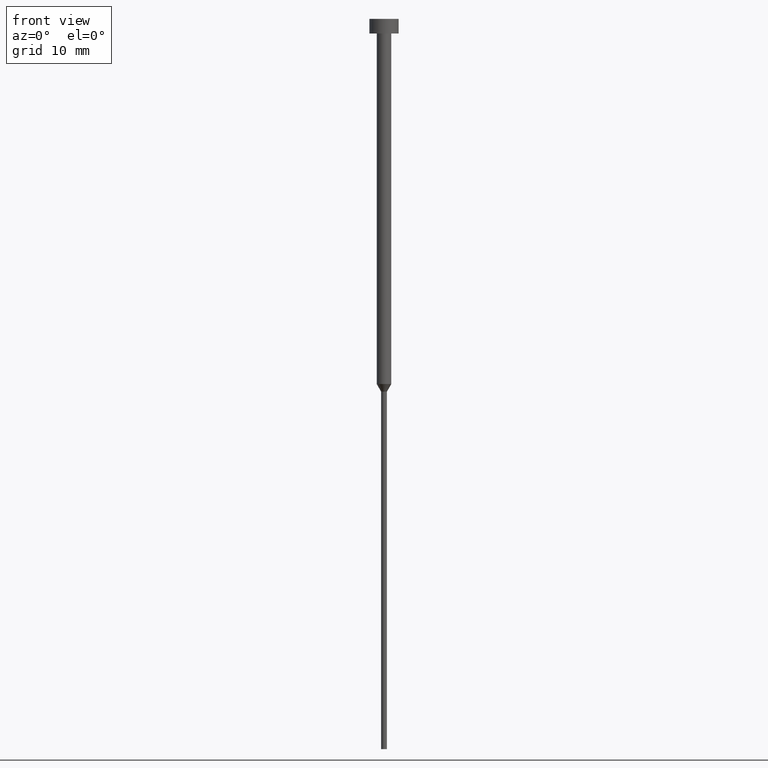
[diagram: clean part render]
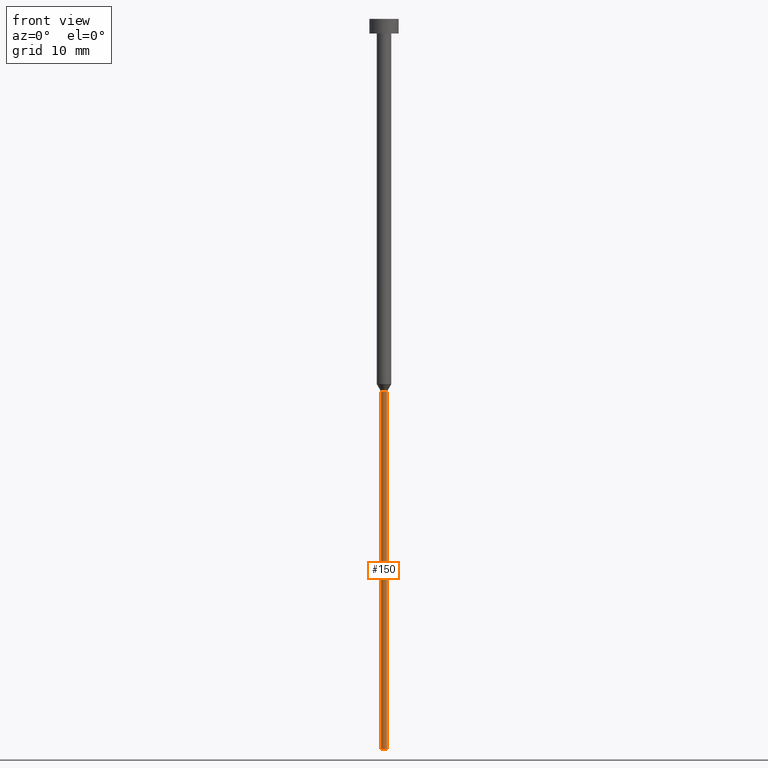
[diagram: same view with one face highlighted and labeled with its STEP entity id]
A machine part, front view. The second image highlights one B-rep face of the part: STEP entity #150.
In plain terms, the highlighted cylindrical surface (edge-blend (fillet) strip) has radius 0.4 mm, axis along (-0, -0, 1).
Its self-contained STEP definition (entity closure, byte-faithful):
#3 = CARTESIAN_POINT ( 'NONE',  ( 0.000000000000000000, 0.000000000000000000, -100.0000000000000000 ) ) ;
#17 = DIRECTION ( 'NONE',  ( 1.000000000000000000, 0.000000000000000000, 0.000000000000000000 ) ) ;
#32 = CARTESIAN_POINT ( 'NONE',  ( -0.3999999999999999667, 4.898587196589412459E-17, 0.000000000000000000 ) ) ;
#58 = VERTEX_POINT ( 'NONE', #254 ) ;
#63 = VERTEX_POINT ( 'NONE', #225 ) ;
#67 = CARTESIAN_POINT ( 'NONE',  ( 0.4000000000000000222, 0.000000000000000000, -100.0000000000000000 ) ) ;
#76 = CIRCLE ( 'NONE', #328, 0.4000000000000000222 ) ;
#85 = VECTOR ( 'NONE', #271, 1000.000000000000000 ) ;
#92 = ORIENTED_EDGE ( 'NONE', *, *, #294, .F. ) ;
#106 = VERTEX_POINT ( 'NONE', #67 ) ;
#113 = AXIS2_PLACEMENT_3D ( 'NONE', #230, #182, #263 ) ;
#117 = EDGE_LOOP ( 'NONE', ( #92, #330, #221, #143 ) ) ;
#122 = DIRECTION ( 'NONE',  ( -0.000000000000000000, -0.000000000000000000, 1.000000000000000000 ) ) ;
#143 = ORIENTED_EDGE ( 'NONE', *, *, #165, .F. ) ;
#150 = ADVANCED_FACE ( 'NONE', ( #189 ), #349, .T. ) ;
#164 = LINE ( 'NONE', #32, #323 ) ;
#165 = EDGE_CURVE ( 'NONE', #63, #58, #235, .T. ) ;
#182 = DIRECTION ( 'NONE',  ( -0.000000000000000000, -0.000000000000000000, 1.000000000000000000 ) ) ;
#189 = FACE_OUTER_BOUND ( 'NONE', #117, .T. ) ;
#204 = VERTEX_POINT ( 'NONE', #290 ) ;
#209 = DIRECTION ( 'NONE',  ( -0.000000000000000000, -0.000000000000000000, 1.000000000000000000 ) ) ;
#215 = DIRECTION ( 'NONE',  ( 1.000000000000000000, 0.000000000000000000, 0.000000000000000000 ) ) ;
#221 = ORIENTED_EDGE ( 'NONE', *, *, #234, .T. ) ;
#225 = CARTESIAN_POINT ( 'NONE',  ( -0.3999999999999999667, 4.898587196589412459E-17, -51.03923048454132783 ) ) ;
#230 = CARTESIAN_POINT ( 'NONE',  ( 0.000000000000000000, 0.000000000000000000, -51.03923048454132783 ) ) ;
#232 = CARTESIAN_POINT ( 'NONE',  ( 0.3999999999999999667, 0.000000000000000000, 0.000000000000000000 ) ) ;
#234 = EDGE_CURVE ( 'NONE', #106, #58, #317, .T. ) ;
#235 = CIRCLE ( 'NONE', #113, 0.3999999999999999667 ) ;
#254 = CARTESIAN_POINT ( 'NONE',  ( 0.3999999999999999667, 0.000000000000000000, -51.03923048454132783 ) ) ;
#263 = DIRECTION ( 'NONE',  ( 1.000000000000000000, 0.000000000000000000, 0.000000000000000000 ) ) ;
#271 = DIRECTION ( 'NONE',  ( -0.000000000000000000, -0.000000000000000000, 1.000000000000000000 ) ) ;
#280 = EDGE_CURVE ( 'NONE', #204, #106, #76, .T. ) ;
#290 = CARTESIAN_POINT ( 'NONE',  ( -0.4000000000000000777, 4.898587196589413692E-17, -100.0000000000000000 ) ) ;
#292 = CARTESIAN_POINT ( 'NONE',  ( 0.000000000000000000, 0.000000000000000000, 0.000000000000000000 ) ) ;
#294 = EDGE_CURVE ( 'NONE', #204, #63, #164, .T. ) ;
#317 = LINE ( 'NONE', #232, #85 ) ;
#318 = AXIS2_PLACEMENT_3D ( 'NONE', #292, #209, #17 ) ;
#323 = VECTOR ( 'NONE', #122, 1000.000000000000000 ) ;
#328 = AXIS2_PLACEMENT_3D ( 'NONE', #3, #337, #215 ) ;
#330 = ORIENTED_EDGE ( 'NONE', *, *, #280, .T. ) ;
#337 = DIRECTION ( 'NONE',  ( -0.000000000000000000, -0.000000000000000000, 1.000000000000000000 ) ) ;
#349 = CYLINDRICAL_SURFACE ( 'NONE', #318, 0.3999999999999999667 ) ;